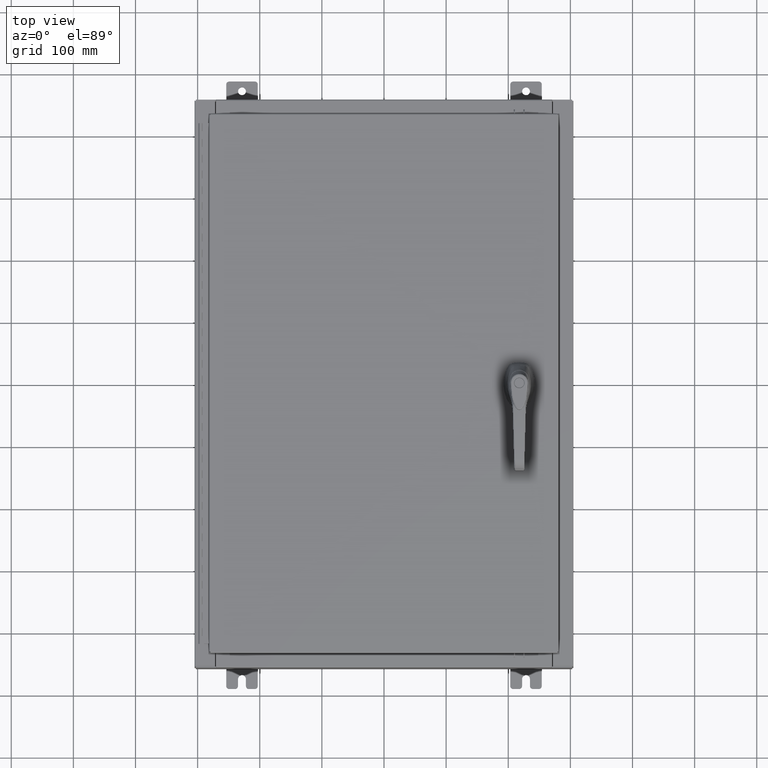
[diagram: clean part render]
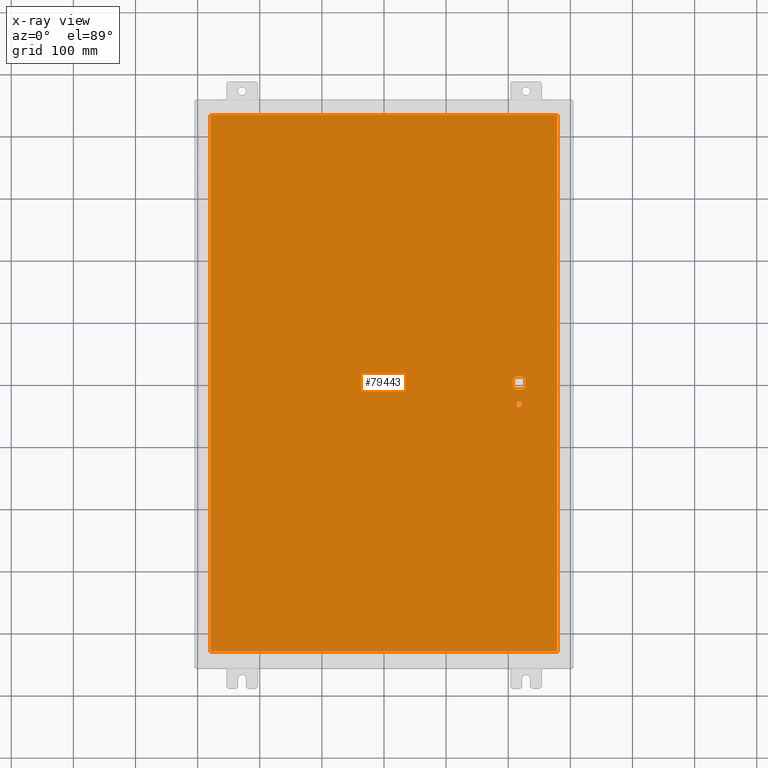
[diagram: x-ray — body ghosted, one internal face saturated and labeled with its STEP entity id]
A machine part, top view, then the same camera in x-ray: the body is ghosted and one INTERNAL B-rep face — a face not visible from any outside direction — is saturated and labeled: STEP entity #79443.
In plain terms, the highlighted planar face has unit normal (0, 0, -1).
Its self-contained STEP definition (entity closure, byte-faithful):
#342 = DIRECTION ( 'NONE',  ( -0.0000000000000000000, -0.0000000000000000000, 1.000000000000000000 ) ) ;
#358 = EDGE_CURVE ( 'NONE', #7974, #109895, #56825, .T. ) ;
#400 = ORIENTED_EDGE ( 'NONE', *, *, #120459, .F. ) ;
#997 = DIRECTION ( 'NONE',  ( -1.000000000000000000, 0.0000000000000000000, 0.0000000000000000000 ) ) ;
#2918 = VECTOR ( 'NONE', #94439, 39.37007874015748100 ) ;
#4720 = VECTOR ( 'NONE', #39537, 39.37007874015748100 ) ;
#5738 = ORIENTED_EDGE ( 'NONE', *, *, #50604, .T. ) ;
#5842 = CARTESIAN_POINT ( 'NONE',  ( 8.577999999999995900, 0.0000000000000000000, -0.07470000000000003000 ) ) ;
#6151 = DIRECTION ( 'NONE',  ( 1.000000000000000000, -0.0000000000000000000, -0.0000000000000000000 ) ) ;
#6764 = CARTESIAN_POINT ( 'NONE',  ( 8.577999999999995900, 0.0000000000000000000, -0.07470000000000003000 ) ) ;
#7609 = ORIENTED_EDGE ( 'NONE', *, *, #120072, .T. ) ;
#7974 = VERTEX_POINT ( 'NONE', #94460 ) ;
#8778 = CARTESIAN_POINT ( 'NONE',  ( 8.778227370756305000, -0.4029999999999252000, -0.07470000000000003000 ) ) ;
#9465 = ORIENTED_EDGE ( 'NONE', *, *, #40170, .T. ) ;
#9897 = VERTEX_POINT ( 'NONE', #57520 ) ;
#11854 = EDGE_CURVE ( 'NONE', #112720, #105099, #26075, .T. ) ;
#12882 = DIRECTION ( 'NONE',  ( -0.0000000000000000000, -0.0000000000000000000, 1.000000000000000000 ) ) ;
#12968 = EDGE_CURVE ( 'NONE', #112720, #100528, #27367, .T. ) ;
#15083 = FACE_BOUND ( 'NONE', #80709, .T. ) ;
#15511 = DIRECTION ( 'NONE',  ( -1.000000000000000000, 0.0000000000000000000, 0.0000000000000000000 ) ) ;
#16425 = DIRECTION ( 'NONE',  ( -1.000000000000000000, 8.881784197001256300E-016, 0.0000000000000000000 ) ) ;
#16768 = DIRECTION ( 'NONE',  ( 2.728745808672812900E-015, -1.000000000000000000, 0.0000000000000000000 ) ) ;
#17733 = CARTESIAN_POINT ( 'NONE',  ( -10.99030000000000100, 17.00630000000000700, -0.07470000000000000300 ) ) ;
#20723 = ORIENTED_EDGE ( 'NONE', *, *, #66516, .F. ) ;
#21093 = EDGE_CURVE ( 'NONE', #60535, #9897, #50153, .T. ) ;
#23986 = DIRECTION ( 'NONE',  ( -1.000000000000000000, -0.0000000000000000000, -0.0000000000000000000 ) ) ;
#24325 = VECTOR ( 'NONE', #45286, 39.37007874015748100 ) ;
#25141 = CARTESIAN_POINT ( 'NONE',  ( -10.99030000000000500, 17.00630000000000700, -0.07470000000000347200 ) ) ;
#25505 = EDGE_CURVE ( 'NONE', #95890, #82129, #105943, .T. ) ;
#26075 = CIRCLE ( 'NONE', #106938, 0.4499999999999156900 ) ;
#27182 = ORIENTED_EDGE ( 'NONE', *, *, #25505, .T. ) ;
#27273 = LINE ( 'NONE', #25141, #24325 ) ;
#27367 = LINE ( 'NONE', #48413, #49882 ) ;
#29849 = CARTESIAN_POINT ( 'NONE',  ( 0.0000000000000000000, 0.4029999999999252000, -0.07470000000000003000 ) ) ;
#31669 = AXIS2_PLACEMENT_3D ( 'NONE', #70148, #12882, #79642 ) ;
#32025 = VERTEX_POINT ( 'NONE', #55150 ) ;
#34211 = VECTOR ( 'NONE', #23986, 39.37007874015748100 ) ;
#37929 = LINE ( 'NONE', #53956, #113681 ) ;
#39537 = DIRECTION ( 'NONE',  ( -1.000000000000000000, 0.0000000000000000000, 0.0000000000000000000 ) ) ;
#40170 = EDGE_CURVE ( 'NONE', #73171, #32025, #116221, .T. ) ;
#41311 = CARTESIAN_POINT ( 'NONE',  ( 8.749499999999997600, -1.338000000000000100, -0.07470000000000003000 ) ) ;
#41975 = CARTESIAN_POINT ( 'NONE',  ( 8.377772629243686700, 0.4029999999999252000, -0.07470000000000003000 ) ) ;
#42155 = VERTEX_POINT ( 'NONE', #47769 ) ;
#42929 = CARTESIAN_POINT ( 'NONE',  ( 0.0000000000000000000, 0.0000000000000000000, -0.07470000000000000300 ) ) ;
#43414 = VERTEX_POINT ( 'NONE', #17733 ) ;
#43426 = CARTESIAN_POINT ( 'NONE',  ( 10.99029999999999600, -17.00629999999999200, -0.07470000000000019700 ) ) ;
#45281 = CARTESIAN_POINT ( 'NONE',  ( 8.406499999999994100, -1.338000000000000100, -0.07470000000000003000 ) ) ;
#45286 = DIRECTION ( 'NONE',  ( 0.0000000000000000000, -1.000000000000000000, 0.0000000000000000000 ) ) ;
#47219 = DIRECTION ( 'NONE',  ( -0.0000000000000000000, -0.0000000000000000000, 1.000000000000000000 ) ) ;
#47769 = CARTESIAN_POINT ( 'NONE',  ( -10.99030000000000000, -17.00629999999999600, -0.07470000000000000300 ) ) ;
#48413 = CARTESIAN_POINT ( 'NONE',  ( 8.980999999999921700, 2.450686610769031800E-014, -0.07470000000000003000 ) ) ;
#49882 = VECTOR ( 'NONE', #16768, 39.37007874015748100 ) ;
#50019 = CARTESIAN_POINT ( 'NONE',  ( 8.175000000000070000, 0.2002273707563080300, -0.07470000000000003000 ) ) ;
#50153 = LINE ( 'NONE', #43426, #97540 ) ;
#50604 = EDGE_CURVE ( 'NONE', #32025, #7974, #83298, .T. ) ;
#52550 = DIRECTION ( 'NONE',  ( -1.000000000000000000, 0.0000000000000000000, -0.0000000000000000000 ) ) ;
#52837 = ORIENTED_EDGE ( 'NONE', *, *, #113204, .T. ) ;
#53030 = DIRECTION ( 'NONE',  ( 0.0000000000000000000, 1.000000000000000000, 0.0000000000000000000 ) ) ;
#53956 = CARTESIAN_POINT ( 'NONE',  ( -10.99030000000000000, -17.00629999999999600, -0.07470000000000019700 ) ) ;
#55150 = CARTESIAN_POINT ( 'NONE',  ( 8.175000000000070000, -0.2002273707563079800, -0.07470000000000003000 ) ) ;
#55389 = EDGE_LOOP ( 'NONE', ( #93921, #400, #20723, #104783 ) ) ;
#56825 = LINE ( 'NONE', #108808, #2918 ) ;
#56918 = LINE ( 'NONE', #29849, #4720 ) ;
#57520 = CARTESIAN_POINT ( 'NONE',  ( 10.99029999999999600, 17.00630000000000700, -0.07470000000000000300 ) ) ;
#57655 = CARTESIAN_POINT ( 'NONE',  ( 8.577999999999995900, -1.338000000000000100, -0.07470000000000003000 ) ) ;
#58594 = AXIS2_PLACEMENT_3D ( 'NONE', #103968, #47219, #113476 ) ;
#59619 = LINE ( 'NONE', #81063, #34211 ) ;
#60535 = VERTEX_POINT ( 'NONE', #103359 ) ;
#60931 = ORIENTED_EDGE ( 'NONE', *, *, #78040, .T. ) ;
#62957 = FACE_OUTER_BOUND ( 'NONE', #55389, .T. ) ;
#65866 = FACE_BOUND ( 'NONE', #72379, .T. ) ;
#66516 = EDGE_CURVE ( 'NONE', #43414, #42155, #27273, .T. ) ;
#67186 = DIRECTION ( 'NONE',  ( -1.000000000000000000, 0.0000000000000000000, 0.0000000000000000000 ) ) ;
#68262 = CARTESIAN_POINT ( 'NONE',  ( 8.577999999999995900, 0.0000000000000000000, -0.07470000000000003000 ) ) ;
#69652 = ORIENTED_EDGE ( 'NONE', *, *, #358, .T. ) ;
#70148 = CARTESIAN_POINT ( 'NONE',  ( 8.577999999999995900, -1.338000000000000100, -0.07470000000000003000 ) ) ;
#70896 = CIRCLE ( 'NONE', #121597, 0.4499999999999156900 ) ;
#72379 = EDGE_LOOP ( 'NONE', ( #109996, #113845, #79560, #60931, #7609, #9465, #5738, #69652 ) ) ;
#72775 = DIRECTION ( 'NONE',  ( -0.0000000000000000000, -0.0000000000000000000, 1.000000000000000000 ) ) ;
#73171 = VERTEX_POINT ( 'NONE', #50019 ) ;
#73666 = DIRECTION ( 'NONE',  ( -0.0000000000000000000, -0.0000000000000000000, 1.000000000000000000 ) ) ;
#74327 = DIRECTION ( 'NONE',  ( -0.0000000000000000000, -0.0000000000000000000, 1.000000000000000000 ) ) ;
#77561 = CARTESIAN_POINT ( 'NONE',  ( 8.778227370756305000, 0.4029999999999250300, -0.07470000000000003000 ) ) ;
#78040 = EDGE_CURVE ( 'NONE', #105099, #104414, #56918, .T. ) ;
#79443 = ADVANCED_FACE ( 'NONE', ( #15083, #62957, #65866 ), #99737, .T. ) ;
#79560 = ORIENTED_EDGE ( 'NONE', *, *, #11854, .T. ) ;
#79642 = DIRECTION ( 'NONE',  ( -1.000000000000000000, 0.0000000000000000000, 0.0000000000000000000 ) ) ;
#80709 = EDGE_LOOP ( 'NONE', ( #27182, #52837 ) ) ;
#81063 = CARTESIAN_POINT ( 'NONE',  ( 10.99029999999999800, 17.00630000000000700, -0.07470000000000019700 ) ) ;
#82129 = VERTEX_POINT ( 'NONE', #45281 ) ;
#83298 = CIRCLE ( 'NONE', #123164, 0.4499999999999156900 ) ;
#91453 = EDGE_CURVE ( 'NONE', #9897, #43414, #59619, .T. ) ;
#93625 = CARTESIAN_POINT ( 'NONE',  ( 8.175000000000070000, 0.0000000000000000000, -0.07470000000000003000 ) ) ;
#93921 = ORIENTED_EDGE ( 'NONE', *, *, #21093, .F. ) ;
#94020 = DIRECTION ( 'NONE',  ( 0.0000000000000000000, -1.000000000000000000, 0.0000000000000000000 ) ) ;
#94439 = DIRECTION ( 'NONE',  ( 1.000000000000000000, 0.0000000000000000000, 0.0000000000000000000 ) ) ;
#94460 = CARTESIAN_POINT ( 'NONE',  ( 8.377772629243686700, -0.4029999999999250300, -0.07470000000000003000 ) ) ;
#95890 = VERTEX_POINT ( 'NONE', #41311 ) ;
#97540 = VECTOR ( 'NONE', #53030, 39.37007874015748100 ) ;
#99737 = PLANE ( 'NONE',  #102532 ) ;
#100528 = VERTEX_POINT ( 'NONE', #112696 ) ;
#102532 = AXIS2_PLACEMENT_3D ( 'NONE', #42929, #109298, #52550 ) ;
#103359 = CARTESIAN_POINT ( 'NONE',  ( 10.99029999999999600, -17.00629999999999600, -0.07470000000000000300 ) ) ;
#103968 = CARTESIAN_POINT ( 'NONE',  ( 8.577999999999995900, 0.0000000000000000000, -0.07470000000000003000 ) ) ;
#104414 = VERTEX_POINT ( 'NONE', #41975 ) ;
#104783 = ORIENTED_EDGE ( 'NONE', *, *, #91453, .F. ) ;
#105099 = VERTEX_POINT ( 'NONE', #77561 ) ;
#105587 = CIRCLE ( 'NONE', #31669, 0.1715000000000011500 ) ;
#105943 = CIRCLE ( 'NONE', #106581, 0.1715000000000011500 ) ;
#105970 = CIRCLE ( 'NONE', #58594, 0.4499999999999156900 ) ;
#106581 = AXIS2_PLACEMENT_3D ( 'NONE', #57655, #342, #67186 ) ;
#106899 = EDGE_CURVE ( 'NONE', #109895, #100528, #105970, .T. ) ;
#106938 = AXIS2_PLACEMENT_3D ( 'NONE', #68262, #74327, #997 ) ;
#108808 = CARTESIAN_POINT ( 'NONE',  ( 0.0000000000000000000, -0.4029999999999252000, -0.07470000000000003000 ) ) ;
#109298 = DIRECTION ( 'NONE',  ( 0.0000000000000000000, 0.0000000000000000000, -1.000000000000000000 ) ) ;
#109895 = VERTEX_POINT ( 'NONE', #8778 ) ;
#109996 = ORIENTED_EDGE ( 'NONE', *, *, #106899, .T. ) ;
#112696 = CARTESIAN_POINT ( 'NONE',  ( 8.980999999999921700, -0.2002273707563075900, -0.07470000000000003000 ) ) ;
#112720 = VERTEX_POINT ( 'NONE', #118459 ) ;
#113204 = EDGE_CURVE ( 'NONE', #82129, #95890, #105587, .T. ) ;
#113291 = VECTOR ( 'NONE', #94020, 39.37007874015748100 ) ;
#113476 = DIRECTION ( 'NONE',  ( -1.000000000000000000, 1.776356839400251300E-015, 0.0000000000000000000 ) ) ;
#113681 = VECTOR ( 'NONE', #6151, 39.37007874015748100 ) ;
#113845 = ORIENTED_EDGE ( 'NONE', *, *, #12968, .F. ) ;
#116221 = LINE ( 'NONE', #93625, #113291 ) ;
#118459 = CARTESIAN_POINT ( 'NONE',  ( 8.980999999999921700, 0.2002273707563080300, -0.07470000000000003000 ) ) ;
#120072 = EDGE_CURVE ( 'NONE', #104414, #73171, #70896, .T. ) ;
#120459 = EDGE_CURVE ( 'NONE', #42155, #60535, #37929, .T. ) ;
#121597 = AXIS2_PLACEMENT_3D ( 'NONE', #5842, #72775, #15511 ) ;
#123164 = AXIS2_PLACEMENT_3D ( 'NONE', #6764, #73666, #16425 ) ;